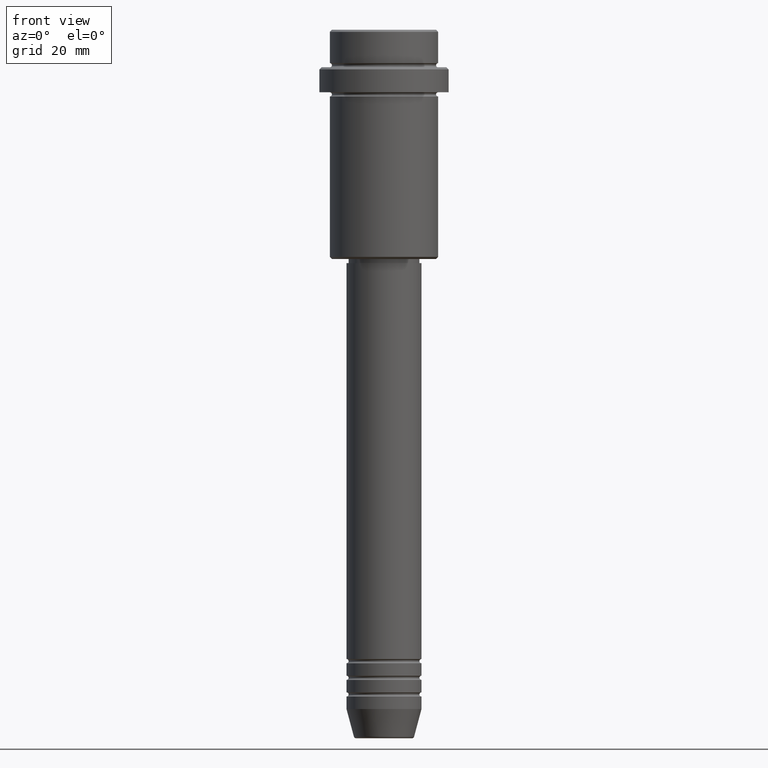
[diagram: clean part render]
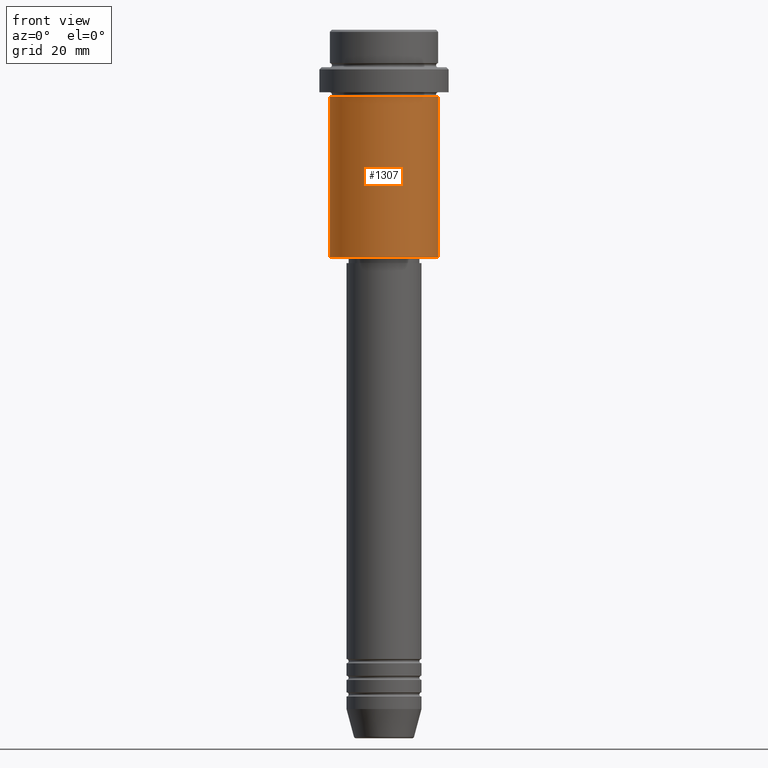
[diagram: same view with one face highlighted and labeled with its STEP entity id]
A machine part, front view. The second image highlights one B-rep face of the part: STEP entity #1307.
In plain terms, the highlighted cylindrical surface (partial cylindrical patch) has radius 13 mm, axis along (-0, -0, 1).
Its self-contained STEP definition (entity closure, byte-faithful):
#11 = CARTESIAN_POINT ( 'NONE',  ( 0.000000000000000000, 0.000000000000000000, -15.99999999999997335 ) ) ;
#66 = VERTEX_POINT ( 'NONE', #389 ) ;
#100 = EDGE_LOOP ( 'NONE', ( #846, #1288, #1354, #392 ) ) ;
#203 = CARTESIAN_POINT ( 'NONE',  ( 0.000000000000000000, 0.000000000000000000, 0.000000000000000000 ) ) ;
#241 = DIRECTION ( 'NONE',  ( -0.000000000000000000, -0.000000000000000000, 1.000000000000000000 ) ) ;
#311 = VERTEX_POINT ( 'NONE', #1100 ) ;
#389 = CARTESIAN_POINT ( 'NONE',  ( 13.00000000000000000, 0.000000000000000000, -54.49999999999997158 ) ) ;
#392 = ORIENTED_EDGE ( 'NONE', *, *, #1053, .F. ) ;
#394 = AXIS2_PLACEMENT_3D ( 'NONE', #683, #1124, #669 ) ;
#482 = LINE ( 'NONE', #1244, #508 ) ;
#501 = VERTEX_POINT ( 'NONE', #1032 ) ;
#508 = VECTOR ( 'NONE', #1147, 1000.000000000000000 ) ;
#517 = FACE_OUTER_BOUND ( 'NONE', #100, .T. ) ;
#520 = CARTESIAN_POINT ( 'NONE',  ( -13.00000000000000000, 1.592040838891559095E-15, -15.99999999999997335 ) ) ;
#553 = AXIS2_PLACEMENT_3D ( 'NONE', #203, #843, #605 ) ;
#567 = LINE ( 'NONE', #1223, #973 ) ;
#579 = EDGE_CURVE ( 'NONE', #66, #501, #482, .T. ) ;
#605 = DIRECTION ( 'NONE',  ( 1.000000000000000000, 0.000000000000000000, 0.000000000000000000 ) ) ;
#638 = DIRECTION ( 'NONE',  ( -0.000000000000000000, -0.000000000000000000, 1.000000000000000000 ) ) ;
#669 = DIRECTION ( 'NONE',  ( -1.000000000000000000, 0.000000000000000000, 0.000000000000000000 ) ) ;
#683 = CARTESIAN_POINT ( 'NONE',  ( 0.000000000000000000, 0.000000000000000000, -54.49999999999997158 ) ) ;
#834 = EDGE_CURVE ( 'NONE', #311, #1417, #567, .T. ) ;
#843 = DIRECTION ( 'NONE',  ( -0.000000000000000000, -0.000000000000000000, 1.000000000000000000 ) ) ;
#846 = ORIENTED_EDGE ( 'NONE', *, *, #834, .F. ) ;
#973 = VECTOR ( 'NONE', #241, 1000.000000000000000 ) ;
#1032 = CARTESIAN_POINT ( 'NONE',  ( 13.00000000000000000, 0.000000000000000000, -15.99999999999997335 ) ) ;
#1053 = EDGE_CURVE ( 'NONE', #1417, #501, #1411, .T. ) ;
#1100 = CARTESIAN_POINT ( 'NONE',  ( -13.00000000000000000, 1.592040838891559095E-15, -54.49999999999997158 ) ) ;
#1101 = CIRCLE ( 'NONE', #394, 13.00000000000000000 ) ;
#1115 = EDGE_CURVE ( 'NONE', #311, #66, #1101, .T. ) ;
#1124 = DIRECTION ( 'NONE',  ( -0.000000000000000000, -0.000000000000000000, 1.000000000000000000 ) ) ;
#1128 = AXIS2_PLACEMENT_3D ( 'NONE', #11, #638, #1210 ) ;
#1147 = DIRECTION ( 'NONE',  ( -0.000000000000000000, -0.000000000000000000, 1.000000000000000000 ) ) ;
#1210 = DIRECTION ( 'NONE',  ( 1.000000000000000000, 0.000000000000000000, 0.000000000000000000 ) ) ;
#1223 = CARTESIAN_POINT ( 'NONE',  ( -13.00000000000000000, 1.592040838891559095E-15, 0.000000000000000000 ) ) ;
#1244 = CARTESIAN_POINT ( 'NONE',  ( 13.00000000000000000, 0.000000000000000000, 0.000000000000000000 ) ) ;
#1275 = CYLINDRICAL_SURFACE ( 'NONE', #553, 13.00000000000000000 ) ;
#1288 = ORIENTED_EDGE ( 'NONE', *, *, #1115, .T. ) ;
#1307 = ADVANCED_FACE ( 'NONE', ( #517 ), #1275, .T. ) ;
#1354 = ORIENTED_EDGE ( 'NONE', *, *, #579, .T. ) ;
#1411 = CIRCLE ( 'NONE', #1128, 13.00000000000000000 ) ;
#1417 = VERTEX_POINT ( 'NONE', #520 ) ;